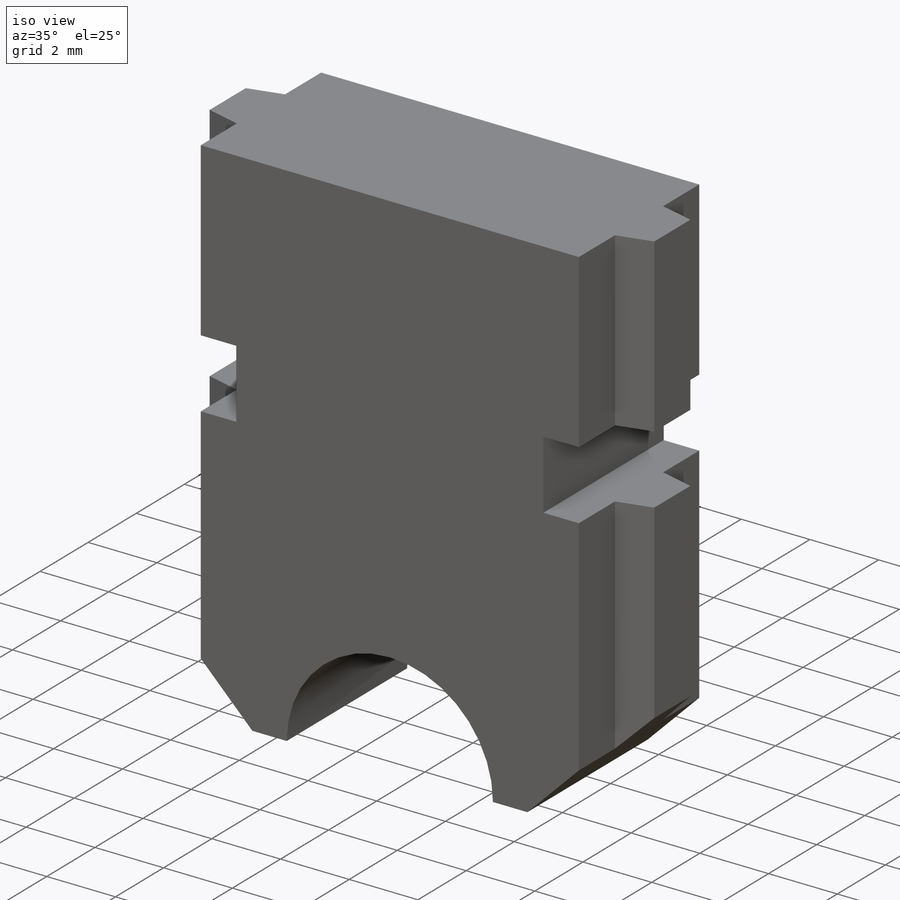
[diagram: iso view]
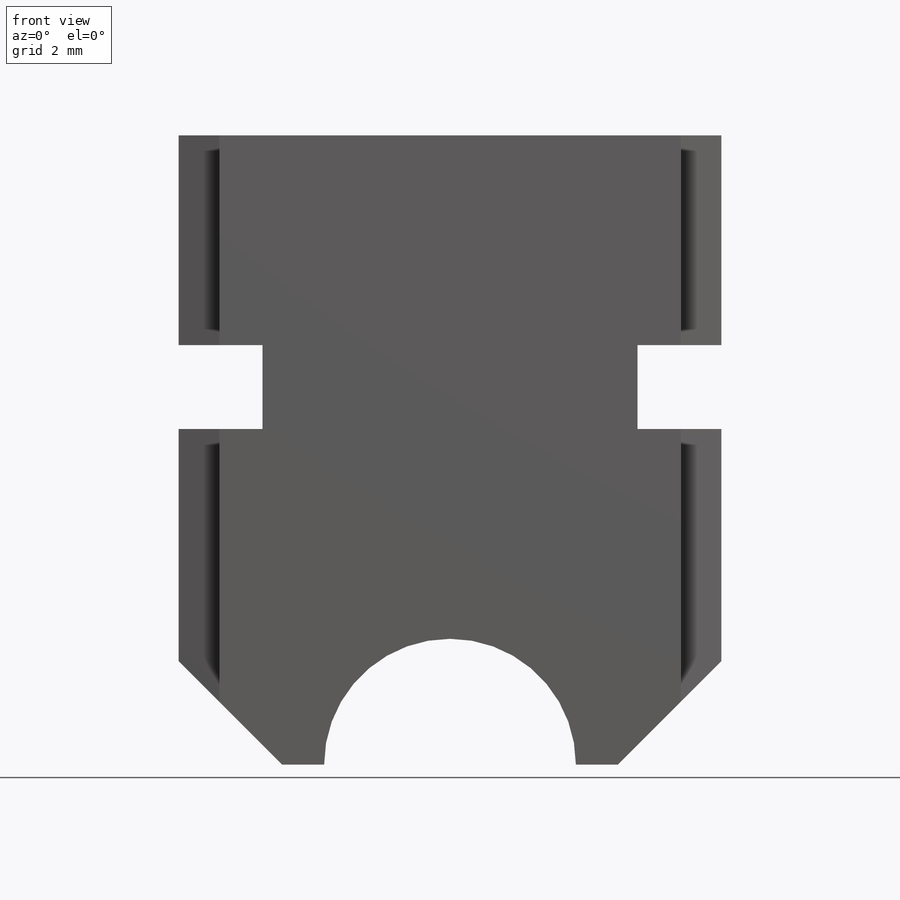
[diagram: front view]
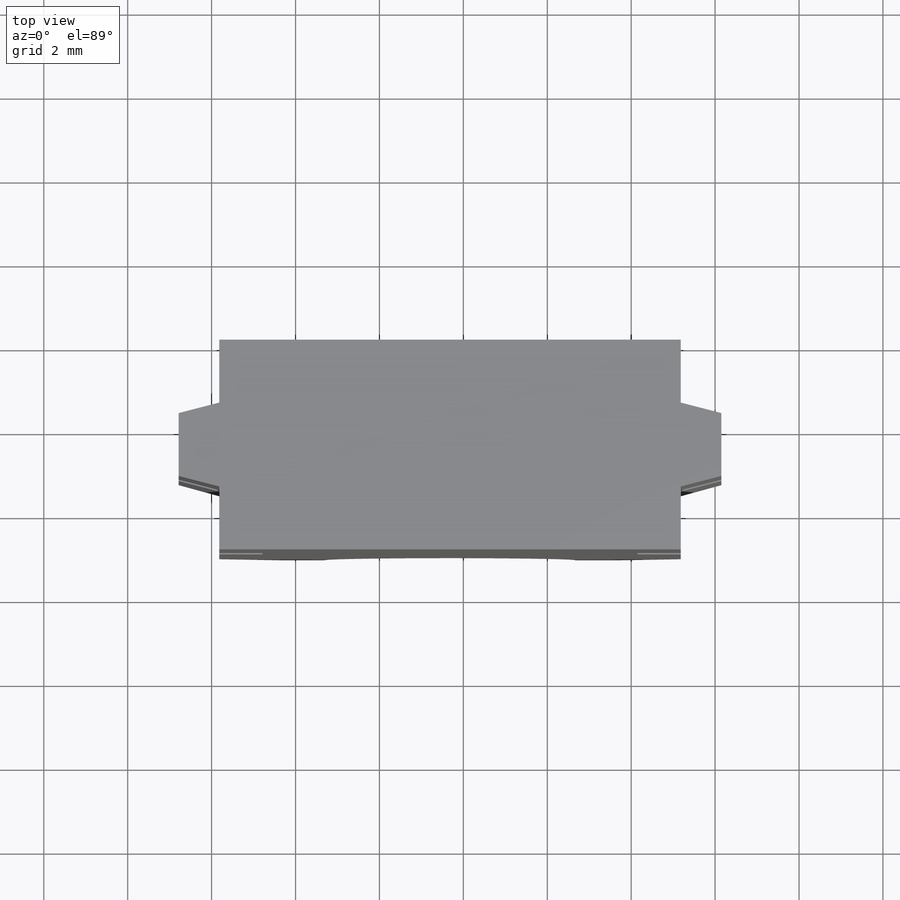
[diagram: top view]
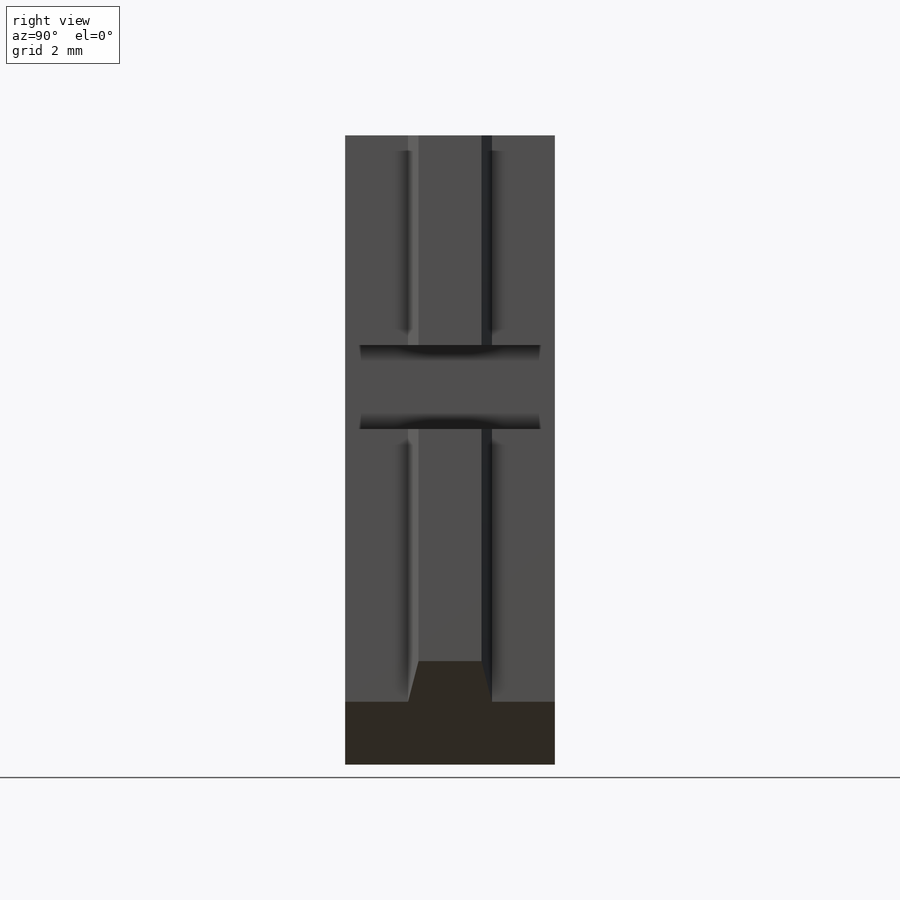
[diagram: right view]
SOLIDWORKS PART (.sldprt)
format: sldprt  version: not decoded by parser v0  size: 217,088 bytes
history: native  units: mm
features: sketch x5, extrude x2, cut_extrude x2, material x1, plane x1, mirror x1 (+12 scaffold rows collapsed)
feature tree (24):
  scaffold x12  (default folders/planes/origin — collapsed)
  material  "Material <not specified>"
  sketch  "Sketch1"  dims[D1=11.0mm D2=13.5mm D3=13.5mm D4=1.0mm D5=1.0mm D6=1.5mm D7=1.5mm D8=1.5mm D9=1.5mm]
  extrude  "Boss-Extrude1"  Depth=5mm
  sketch  "Sketch2"  dims[D1=1.0mm D2=1.0mm D3=0.75mm]
  extrude  "Boss-Extrude2"  Depth=15mm
  sketch  "Sketch3"
  cut_extrude  "Cut-Extrude1"  Depth=15mm
  sketch  "Sketch4"  dims[D1=5.0mm D2=2.0mm D3=2.0mm D4=2.0mm]
  sketch  "Sketch5"
  plane  "Plane1"
  cut_extrude  "Cut-Extrude2"  Depth=15mm
  mirror  "Mirror1"
decode coverage: 7 of 10 modeling features carry decoded parameters
note: suppression state not decoded; provenance and decode notes live in map.json
